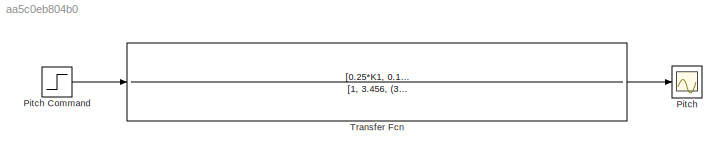
MODEL slx_aa5c0eb804b0
KIND model
CONFIG AbsTol = auto
CONFIG EnableMultiTasking = off
CONFIG FixedStep = auto
CONFIG InitFcn = K1 = 1;\nK2 = 1;
CONFIG MaxStep = auto
CONFIG MinStep = auto
CONFIG RelTol = 1e-3
CONFIG SampleTimeConstraint = Unconstrained
CONFIG SolverName = VariableStepAuto
CONFIG StartTime = 0.0
CONFIG StopTime = 70
BLOCK [Scope] Pitch
  Floating = off
  NameLocation = top
  NumInputPorts = 1
  ScopeSpecificationString = Simulink.scopes.TimeScopeBlockCfg('CurrentConfiguration', extmgr.ConfigurationSet(extmgr.Configuration('Core','General UI',true),extmgr.Configuration('Core','Source UI',true),extmgr.Configuration('Sources','WiredSimulink',true),extmgr.Configuration('Visuals','Time Domain',true,'SerializedDisplays',{struct('MinYLimReal','-0.09835','MaxYLimReal','0.88518','YLabelReal','','MinYLimMag','0.00000','MaxY...<+1332ch>
BLOCK [Step] Pitch Command
  SampleTime = 0
BLOCK [TransferFcn] Transfer Fcn
  Denominator = [1, 3.456, (3.20688+0.25*K2), (0.610547 + 0.25*K1 + 0.10875*K2), (0.041574 + 0.10875*K1)]
  Numerator = [0.25*K1, 0.10875*K1]
LINE Pitch Command:1 -> Transfer Fcn:1
LINE Transfer Fcn:1 -> Pitch:1
